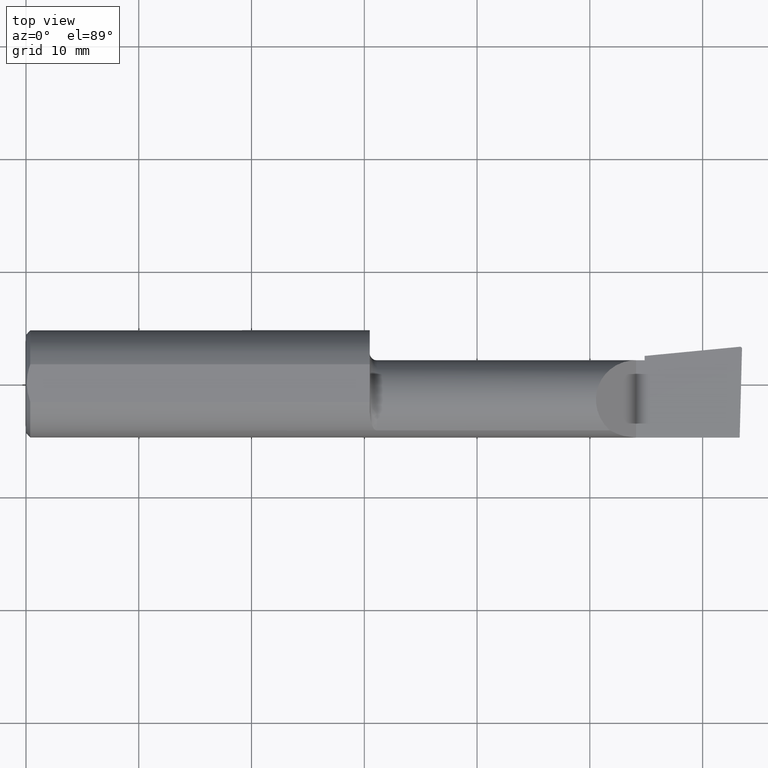
[diagram: clean part render]
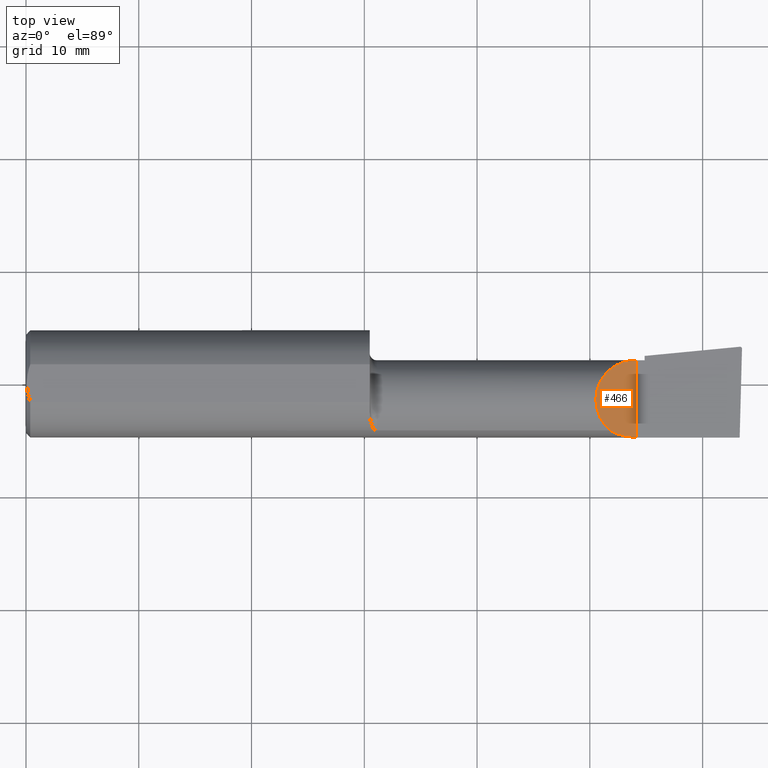
[diagram: same view with one face highlighted and labeled with its STEP entity id]
A machine part, top view. The second image highlights one B-rep face of the part: STEP entity #466.
In plain terms, the highlighted planar face has unit normal (-0.7071, 0, -0.7071).
Its self-contained STEP definition (entity closure, byte-faithful):
#9 = VECTOR ( 'NONE', #337, 39.37007874015748143 ) ;
#11 = EDGE_CURVE ( 'NONE', #511, #183, #655, .T. ) ;
#42 = CARTESIAN_POINT ( 'NONE',  ( 2.097861799102314961, -0.1873500000000000165, 0.03213820089768509858 ) ) ;
#62 = DIRECTION ( 'NONE',  ( -0.7071067811865511255, 0.000000000000000000, 0.7071067811865437980 ) ) ;
#75 = CARTESIAN_POINT ( 'NONE',  ( 2.129999999999999893, 0.08264999999999983471, 1.065442715258197396E-16 ) ) ;
#113 = CARTESIAN_POINT ( 'NONE',  ( 2.129999999999999893, -0.2500000000000000555, 1.065442715258197396E-16 ) ) ;
#151 =( BOUNDED_CURVE ( )  B_SPLINE_CURVE ( 3, ( #593, #483, #548, #326 ),
 .UNSPECIFIED., .F., .T. ) 
 B_SPLINE_CURVE_WITH_KNOTS ( ( 4, 4 ),
 ( 5.422530673488457964, 7.853981633974482790 ),
 .UNSPECIFIED. ) 
 CURVE ( )  GEOMETRIC_REPRESENTATION_ITEM ( )  RATIONAL_B_SPLINE_CURVE ( ( 1.000000000000000000, 0.5651045289226861446, 0.5651045289226861446, 1.000000000000000000 ) ) 
 REPRESENTATION_ITEM ( '' )  );
#183 = VERTEX_POINT ( 'NONE', #75 ) ;
#208 = CARTESIAN_POINT ( 'NONE',  ( 2.129999999999999893, -0.1873499999999999888, 1.065442715258197396E-16 ) ) ;
#221 = ORIENTED_EDGE ( 'NONE', *, *, #11, .T. ) ;
#227 = VERTEX_POINT ( 'NONE', #464 ) ;
#236 = CARTESIAN_POINT ( 'NONE',  ( 2.129999999999999893, -0.2500000000000000555, 1.065442715258197396E-16 ) ) ;
#248 = CARTESIAN_POINT ( 'NONE',  ( 2.129999999999999893, -0.1873499999999999888, 1.065442715258197396E-16 ) ) ;
#290 = EDGE_CURVE ( 'NONE', #511, #227, #356, .T. ) ;
#326 = CARTESIAN_POINT ( 'NONE',  ( 2.129999999999999893, 0.08264999999999983471, 1.065442715258197396E-16 ) ) ;
#328 = AXIS2_PLACEMENT_3D ( 'NONE', #113, #545, #62 ) ;
#337 = DIRECTION ( 'NONE',  ( -0.000000000000000000, 1.000000000000000000, -0.000000000000000000 ) ) ;
#356 =( BOUNDED_CURVE ( )  B_SPLINE_CURVE ( 3, ( #208, #42, #589, #523 ),
 .UNSPECIFIED., .F., .F. ) 
 B_SPLINE_CURVE_WITH_KNOTS ( ( 4, 4 ),
 ( 4.712388980384689674, 5.221437360734125122 ),
 .UNSPECIFIED. ) 
 CURVE ( )  GEOMETRIC_REPRESENTATION_ITEM ( )  RATIONAL_B_SPLINE_CURVE ( ( 1.000000000000000000, 0.9785221379938656705, 0.9785221379938656705, 1.000000000000000000 ) ) 
 REPRESENTATION_ITEM ( '' )  );
#383 = FACE_OUTER_BOUND ( 'NONE', #605, .T. ) ;
#412 = EDGE_CURVE ( 'NONE', #227, #183, #151, .T. ) ;
#464 = CARTESIAN_POINT ( 'NONE',  ( 2.038695632261437130, -0.1635956445993030084, 0.09130436773856177857 ) ) ;
#466 = ADVANCED_FACE ( 'NONE', ( #383 ), #598, .F. ) ;
#483 = CARTESIAN_POINT ( 'NONE',  ( 1.921229036482944075, -0.06260079402492445266, 0.2087709635170538203 ) ) ;
#511 = VERTEX_POINT ( 'NONE', #248 ) ;
#523 = CARTESIAN_POINT ( 'NONE',  ( 2.038695632261437130, -0.1635956445993030084, 0.09130436773856177857 ) ) ;
#545 = DIRECTION ( 'NONE',  ( -0.7071067811865439090, 0.000000000000000000, -0.7071067811865512365 ) ) ;
#548 = CARTESIAN_POINT ( 'NONE',  ( 1.975085956200449022, 0.08264999999999993185, 0.1549140437995494002 ) ) ;
#589 = CARTESIAN_POINT ( 'NONE',  ( 2.066758987970638284, -0.1792580844883770730, 0.06324101202936138755 ) ) ;
#593 = CARTESIAN_POINT ( 'NONE',  ( 2.038695632261437130, -0.1635956445993030084, 0.09130436773856177857 ) ) ;
#594 = ORIENTED_EDGE ( 'NONE', *, *, #290, .F. ) ;
#598 = PLANE ( 'NONE',  #328 ) ;
#603 = ORIENTED_EDGE ( 'NONE', *, *, #412, .F. ) ;
#605 = EDGE_LOOP ( 'NONE', ( #603, #594, #221 ) ) ;
#655 = LINE ( 'NONE', #236, #9 ) ;